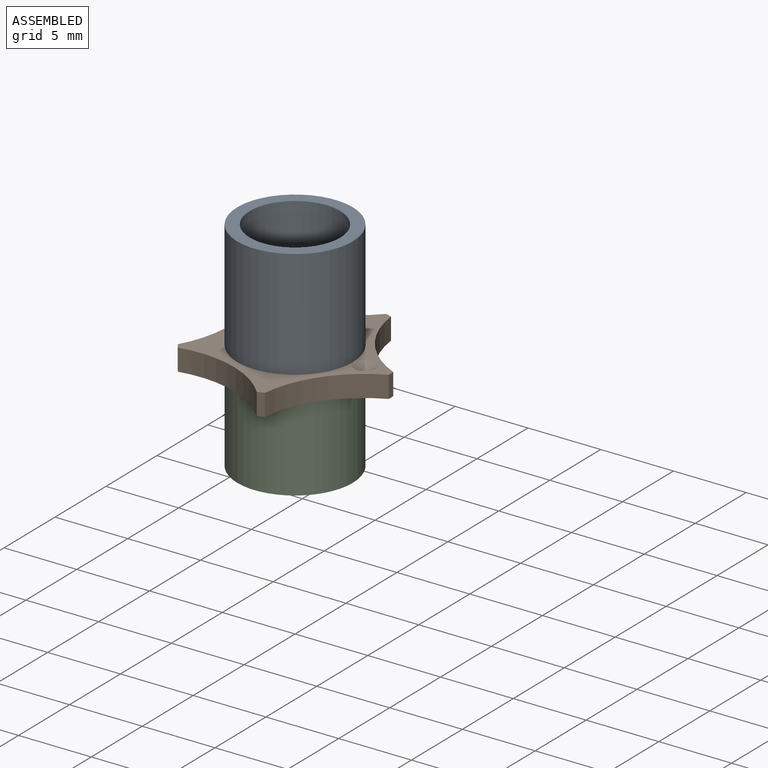
[diagram: assembled view]
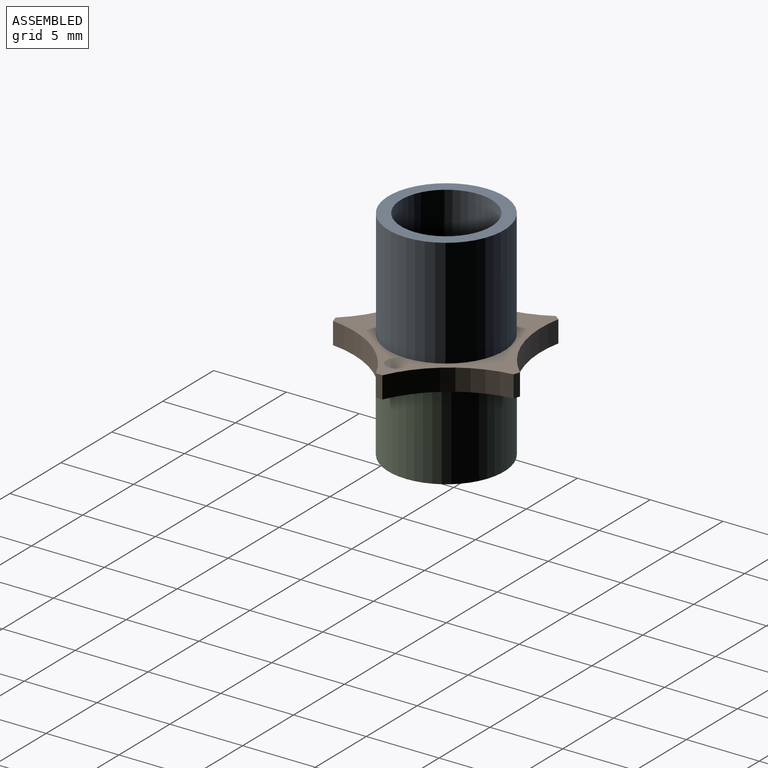
[diagram: assembled view, second angle]
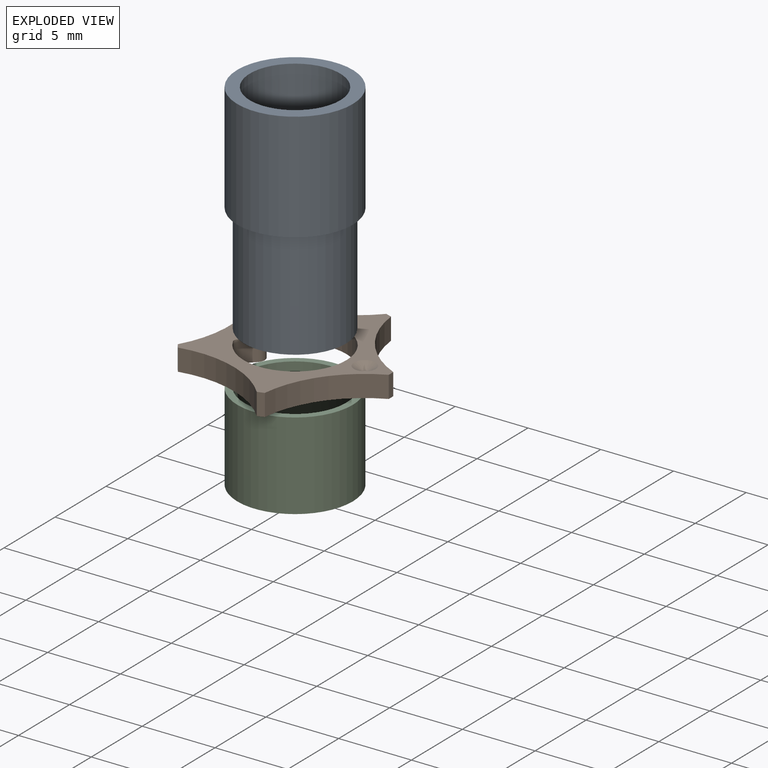
[diagram: exploded view]
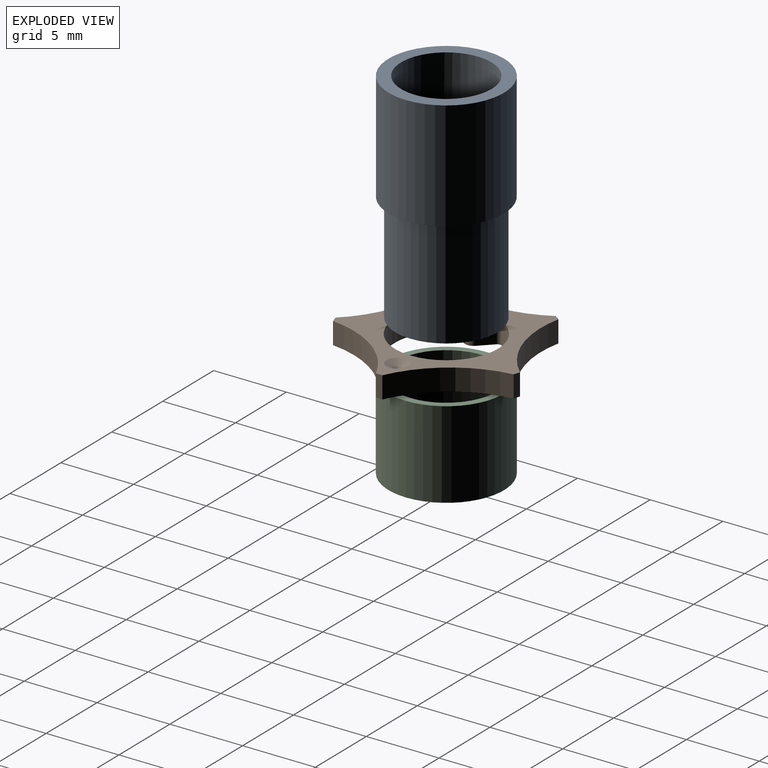
[diagram: exploded view, second angle]
ASSEMBLY  parts=3 mates=2
PART A: 12 faces, bbox 7.9x7.9x15 mm
  f0: cylinder r=3.11mm len=15mm, axis (0,0,-1), area 268.3mm2, adj f2,f4,f6,f7,f11
  f1: cylinder r=3.97mm len=7.94mm, axis (0,0,-1), area 187.1mm2, adj f2,f3
  f2: plane 7.94x7.94mm, normal (0,0,1), area 19.2mm2, adj f0,f1
  f3: plane 7.94x7.94mm, normal (0,0,-1), area 10.8mm2, adj f1,f10
  f4: plane 3.13x1.46mm, normal (0,0,1), area 2.7mm2, adj f0,f5,f6,f7,f8,f9
  f5: plane 7.5x0.75mm, normal (0.71,-0.71,0), area 7.9mm2, adj f4,f6,f9,f11
  f6: cylinder r=0.15mm len=7.5mm, axis (0,0,1), area 1.5mm2, adj f0,f4,f5,f11
  f7: cylinder r=0.15mm len=7.5mm, axis (0,0,1), area 1.5mm2, adj f0,f4,f8,f11
  f8: plane 7.5x0.75mm, normal (0.71,0.71,0), area 7.9mm2, adj f4,f7,f9,f11
  f9: cylinder r=0.9mm len=7.5mm, axis (0,0,1), area 10.6mm2, adj f4,f5,f8,f11
  f10: cylinder r=3.51mm len=7.5mm, axis (0,0,1), area 165.4mm2, adj f3,f11
  f11: plane 7.02x7.02mm, normal (0,0,-1), area 11mm2, adj f0,f5,f6,f7,f8,f9,f10
PART B: 19 faces, bbox 12.1x12.7x1.5 mm
  f0: cylinder r=7.5mm len=7.03mm, axis (0,0,-1), area 11.6mm2, adj f1,f15,f16,f17
  f1: cylinder r=6.6mm len=1.5mm, axis (0,0,-1), area 0.7mm2, adj f0,f2,f16,f17
  f2: cylinder r=7.5mm len=7.39mm, axis (0,0,-1), area 11.6mm2, adj f1,f3,f16,f17
  f3: cylinder r=6.6mm len=1.5mm, axis (0,0,-1), area 0.7mm2, adj f2,f4,f16,f17
  f4: cylinder r=7.5mm len=7.02mm, axis (0,0,-1), area 11.6mm2, adj f3,f5,f16,f17
  f5: cylinder r=6.6mm len=1.5mm, axis (0,0,-1), area 0.7mm2, adj f4,f6,f16,f17
  f6: cylinder r=7.5mm len=5.97mm, axis (0,0,-1), area 11.6mm2, adj f5,f7,f16,f17
  f7: cylinder r=6.6mm len=1.5mm, axis (0,0,-1), area 0.7mm2, adj f6,f8,f16,f17
  f8: cylinder r=7.5mm len=5.98mm, axis (0,0,-1), area 11.6mm2, adj f7,f15,f16,f17
  f9: cylinder r=3.53mm len=7.06mm, axis (0,0,-1), area 28.3mm2, adj f10,f14,f16,f17
  f10: cylinder r=0.3mm len=1.5mm, axis (0,0,-1), area 0.6mm2, adj f9,f11,f16,f17
  f11: plane 1.5x0.83mm, normal (0.71,-0.71,0), area 1.8mm2, adj f10,f12,f16,f17
  f12: cylinder r=0.6mm len=1.5mm, axis (0,0,-1), area 1.4mm2, adj f11,f13,f16,f17
  f13: plane 1.5x0.83mm, normal (0.71,0.71,0), area 1.8mm2, adj f12,f14,f16,f17
  f14: cylinder r=0.3mm len=1.5mm, axis (0,0,-1), area 0.6mm2, adj f9,f13,f16,f17
  f15: cylinder r=6.6mm len=1.5mm, axis (0,0,-1), area 0.7mm2, adj f0,f8,f16,f17
  f16: plane 12.69x12.07mm, normal (0,0,1), area 45.8mm2, adj f0,f1,f2,f3,f4,f5,f6,f7
  f17: plane 12.69x12.07mm, normal (0,0,-1), area 47.6mm2, adj f0,f1,f2,f3,f4,f5,f6,f7
  f18: cone r=0.75mm half-angle=60deg, axis (0,0,1), area 2mm2, adj f16
PART C: 4 faces, bbox 7.9x7.9x6 mm
  f0: cylinder r=3.51mm len=7.02mm, axis (0,0,-1), area 132.3mm2, adj f2,f3
  f1: cylinder r=3.97mm len=7.94mm, axis (0,0,-1), area 149.7mm2, adj f2,f3
  f2: plane 7.94x7.94mm, normal (0,0,1), area 10.8mm2, adj f0,f1
  f3: plane 7.94x7.94mm, normal (0,0,-1), area 10.8mm2, adj f0,f1
PLACE A at identity fixed
PLACE B t=(0,0,-1.5)mm
PLACE C t=(0,0,-7.5)mm
MATE fastened B.f1 <-> C.f0  axis (0,0,-1) through (0,0,-1.5)mm
MATE fastened B.f1 <-> A.f0  axis (0,0,1) through (0,0,0)mm
